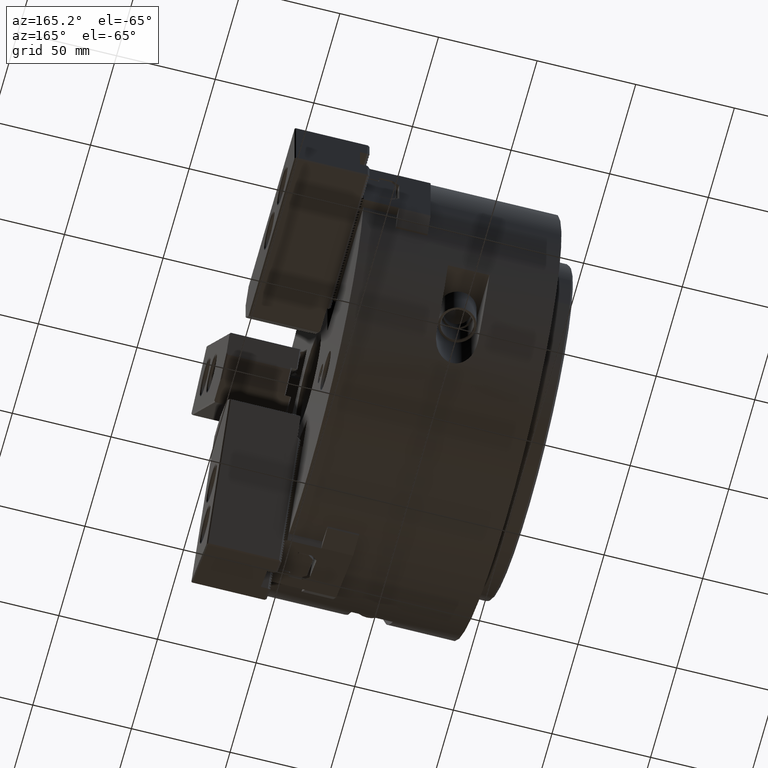
[diagram: clean part render]
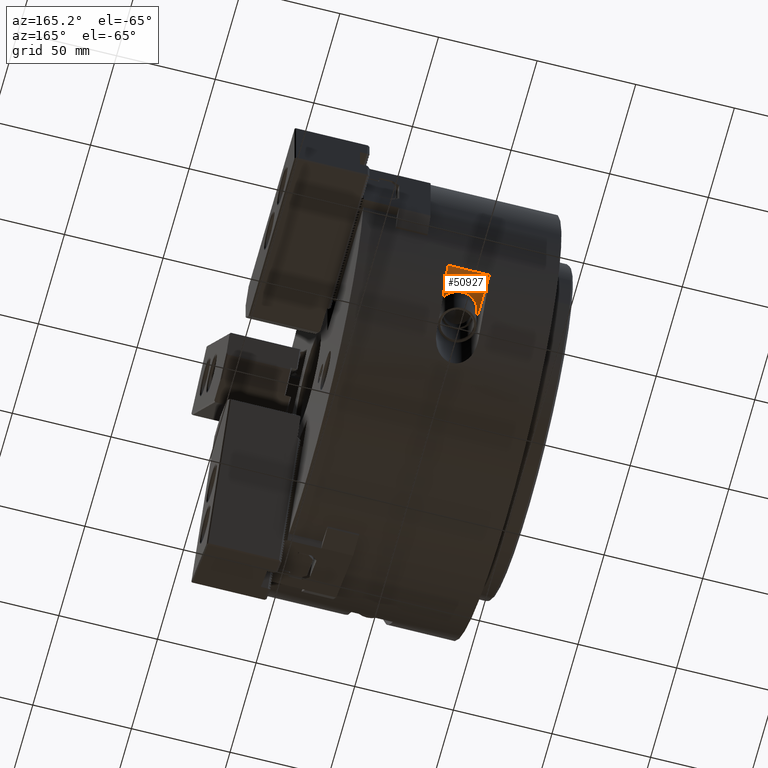
[diagram: same view with one face highlighted and labeled with its STEP entity id]
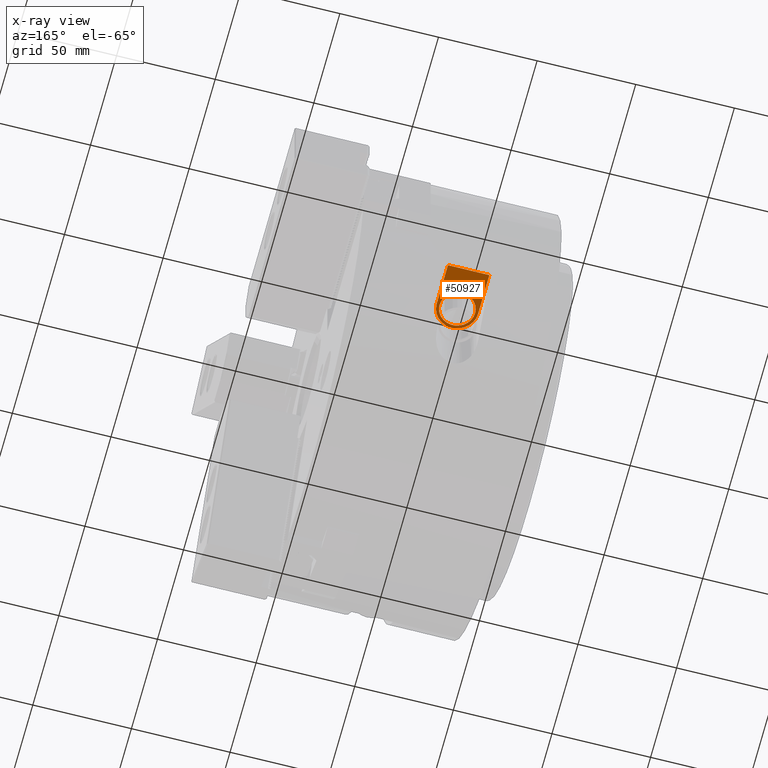
[diagram: x-ray of the same camera — body ghosted, the highlighted face saturated]
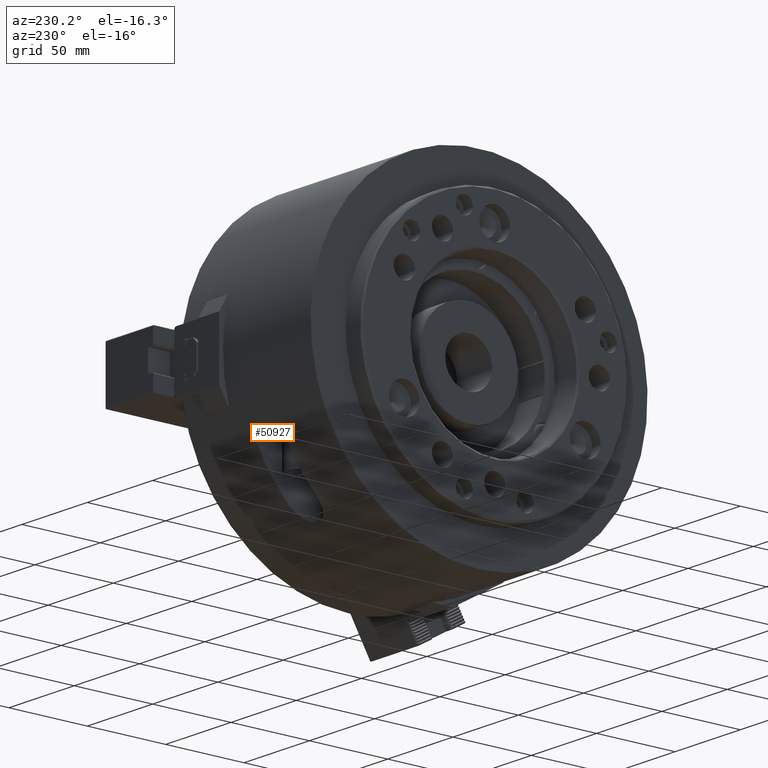
[diagram: same view with one face highlighted and labeled with its STEP entity id]
A machine part, auxiliary view. The second image highlights one B-rep face of the part: STEP entity #50927.
The next image is the same camera in x-ray: the body ghosted, the highlighted face saturated — about 0% of this face is hidden behind the body in this view.
A second angle (auxiliary view) of the same face is appended — the face is thin or edge-on in the first view.
In plain terms, the highlighted planar face has unit normal (0, 0, -1).
Its self-contained STEP definition (entity closure, byte-faithful):
#90=LINE('',#71750,#6590);
#300=LINE('',#72652,#6800);
#302=LINE('',#72658,#6802);
#6590=VECTOR('',#57853,1000.);
#6800=VECTOR('',#58815,1000.);
#6802=VECTOR('',#58823,1000.);
#13179=PLANE('',#54406);
#16746=ORIENTED_EDGE('',*,*,#31058,.F.);
#16747=ORIENTED_EDGE('',*,*,#31054,.F.);
#16748=ORIENTED_EDGE('',*,*,#31056,.F.);
#16749=ORIENTED_EDGE('',*,*,#31057,.F.);
#16750=ORIENTED_EDGE('',*,*,#30641,.T.);
#30641=EDGE_CURVE('',#42192,#42191,#90,.T.);
#31054=EDGE_CURVE('',#42495,#42191,#300,.T.);
#31056=EDGE_CURVE('',#42496,#42495,#38220,.T.);
#31057=EDGE_CURVE('',#42192,#42496,#302,.T.);
#31058=EDGE_CURVE('',#42497,#42497,#38221,.T.);
#38220=CIRCLE('',#54404,10.5);
#38221=CIRCLE('',#54407,9.);
#39161=EDGE_LOOP('',(#16746));
#39162=EDGE_LOOP('',(#16747,#16748,#16749,#16750));
#42191=VERTEX_POINT('',#71749);
#42192=VERTEX_POINT('',#71751);
#42495=VERTEX_POINT('',#72651);
#42496=VERTEX_POINT('',#72655);
#42497=VERTEX_POINT('',#72661);
#47602=FACE_BOUND('',#39161,.T.);
#47603=FACE_BOUND('',#39162,.T.);
#50927=ADVANCED_FACE('',(#47602,#47603),#13179,.T.);
#54404=AXIS2_PLACEMENT_3D('',#72656,#58819,#58820);
#54406=AXIS2_PLACEMENT_3D('',#72659,#58824,#58825);
#54407=AXIS2_PLACEMENT_3D('',#72660,#58826,#58827);
#57853=DIRECTION('',(1.,0.,0.));
#58815=DIRECTION('',(-1.68468328065321E-16,1.,0.));
#58819=DIRECTION('',(0.,0.,1.));
#58820=DIRECTION('',(-1.,0.,0.));
#58823=DIRECTION('',(0.,-1.,0.));
#58824=DIRECTION('',(0.,0.,-1.));
#58825=DIRECTION('',(-1.,0.,0.));
#58826=DIRECTION('',(0.,0.,-1.));
#58827=DIRECTION('',(-1.,0.,0.));
#71749=CARTESIAN_POINT('',(-45.,97.8570385818005,-44.5));
#71750=CARTESIAN_POINT('',(7.58953753753755,97.8570385818005,-44.5));
#71751=CARTESIAN_POINT('',(-66.,97.8570385818005,-44.5));
#72651=CARTESIAN_POINT('',(-45.,76.1,-44.5));
#72652=CARTESIAN_POINT('',(-45.,117.288121135842,-44.5));
#72655=CARTESIAN_POINT('',(-66.,76.1,-44.5));
#72656=CARTESIAN_POINT('',(-55.5,76.1,-44.5));
#72658=CARTESIAN_POINT('',(-66.,76.1,-44.5));
#72659=CARTESIAN_POINT('',(-55.5,76.1,-44.5));
#72660=CARTESIAN_POINT('',(-55.5,76.1,-44.5));
#72661=CARTESIAN_POINT('',(-64.5,76.1,-44.5));